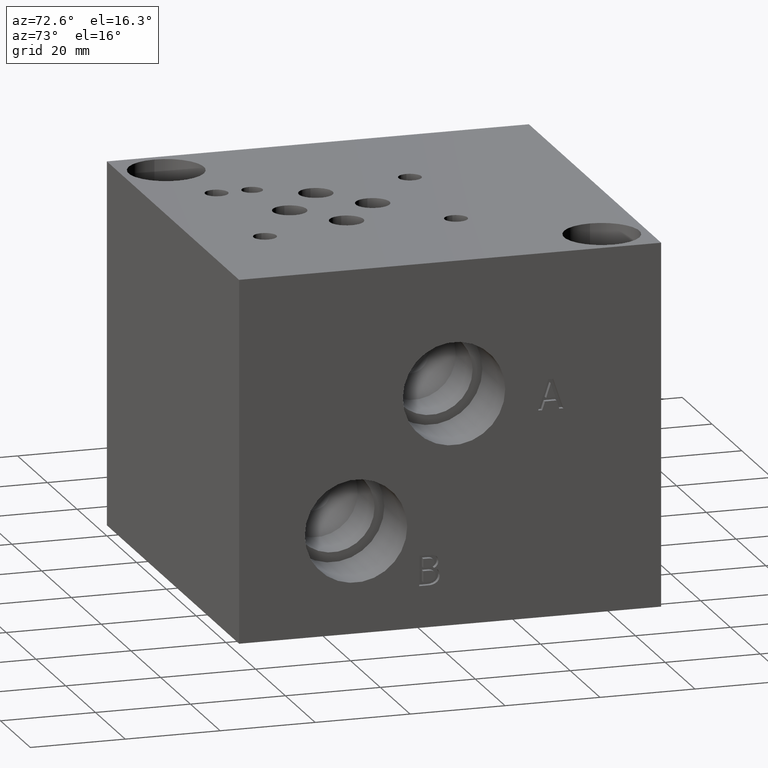
[diagram: clean part render]
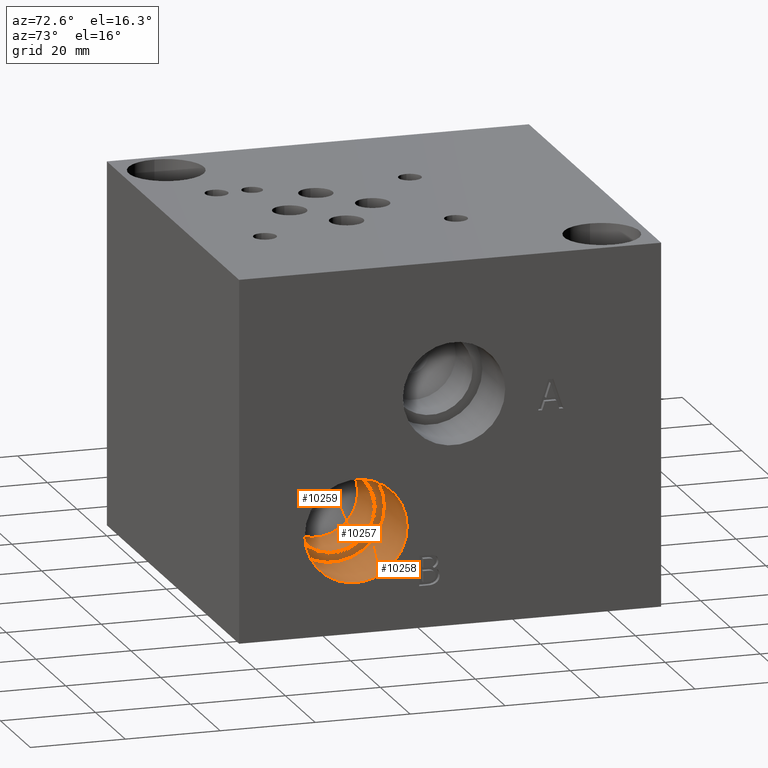
[diagram: same view with one multi-face feature highlighted, each face labeled with its STEP entity id]
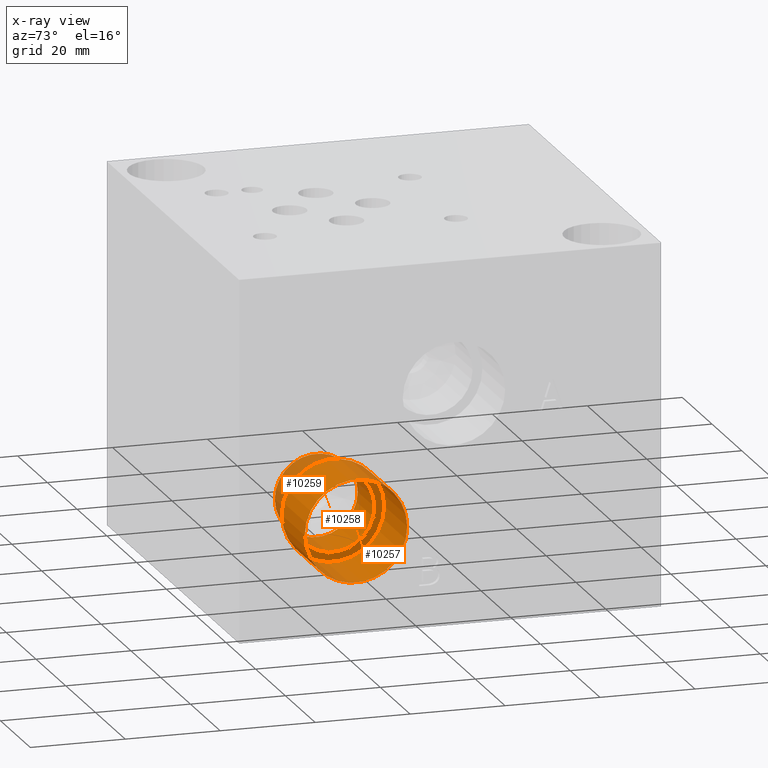
[diagram: x-ray of the same camera — body ghosted, the whole feature saturated]
A machine part, auxiliary view. The highlighted faces form ONE feature: a stepped (counterbored) hole: 2 coaxial cylindrical walls of radii 8.7376 -> 10.795 mm joined by 1 annular planar shoulder face(s). The faces share edges in the B-rep.
The next image is the same camera in x-ray: the body ghosted and the whole hole feature saturated, so the bore chain is visible through the body.
Their STEP definitions:
[1] entity #10258 (Cylinder):
#24=CYLINDRICAL_SURFACE('',#10691,10.795);
#87=CIRCLE('',#10622,10.795);
#88=CIRCLE('',#10623,10.795);
#117=CIRCLE('',#10688,10.795);
#118=CIRCLE('',#10689,10.795);
#1066=FACE_OUTER_BOUND('',#1645,.T.);
#1645=EDGE_LOOP('',(#8899,#8900,#8901,#8902,#8903,#8904));
#2659=LINE('',#17422,#3639);
#3639=VECTOR('',#12500,10.795);
#4791=VERTEX_POINT('',#17242);
#4792=VERTEX_POINT('',#17243);
#4848=VERTEX_POINT('',#17415);
#4849=VERTEX_POINT('',#17416);
#6152=EDGE_CURVE('',#4791,#4792,#87,.T.);
#6153=EDGE_CURVE('',#4792,#4791,#88,.T.);
#6232=EDGE_CURVE('',#4848,#4849,#117,.T.);
#6233=EDGE_CURVE('',#4849,#4848,#118,.T.);
#6235=EDGE_CURVE('',#4792,#4849,#2659,.T.);
#8899=ORIENTED_EDGE('',*,*,#6152,.F.);
#8900=ORIENTED_EDGE('',*,*,#6153,.F.);
#8901=ORIENTED_EDGE('',*,*,#6235,.T.);
#8902=ORIENTED_EDGE('',*,*,#6232,.F.);
#8903=ORIENTED_EDGE('',*,*,#6233,.F.);
#8904=ORIENTED_EDGE('',*,*,#6235,.F.);
#10258=ADVANCED_FACE('',(#1066),#24,.F.);
#10622=AXIS2_PLACEMENT_3D('',#17244,#12310,#12311);
#10623=AXIS2_PLACEMENT_3D('',#17245,#12312,#12313);
#10688=AXIS2_PLACEMENT_3D('',#17417,#12492,#12493);
#10689=AXIS2_PLACEMENT_3D('',#17418,#12494,#12495);
#10691=AXIS2_PLACEMENT_3D('',#17421,#12498,#12499);
#12310=DIRECTION('center_axis',(-1.,0.,0.));
#12311=DIRECTION('ref_axis',(0.,1.,0.));
#12312=DIRECTION('center_axis',(-1.,0.,0.));
#12313=DIRECTION('ref_axis',(0.,1.,0.));
#12492=DIRECTION('center_axis',(1.,0.,0.));
#12493=DIRECTION('ref_axis',(0.,1.,0.));
#12494=DIRECTION('center_axis',(1.,0.,0.));
#12495=DIRECTION('ref_axis',(0.,1.,0.));
#12498=DIRECTION('center_axis',(1.,0.,0.));
#12499=DIRECTION('ref_axis',(0.,1.,0.));
#12500=DIRECTION('',(-1.,0.,0.));
#17242=CARTESIAN_POINT('',(88.9,35.4076,21.4376));
#17243=CARTESIAN_POINT('',(88.9,13.8176,21.4376));
#17244=CARTESIAN_POINT('Origin',(88.9,24.6126,21.4376));
#17245=CARTESIAN_POINT('Origin',(88.9,24.6126,21.4376));
#17415=CARTESIAN_POINT('',(73.533,35.4076,21.4376));
#17416=CARTESIAN_POINT('',(73.533,13.8176,21.4376));
#17417=CARTESIAN_POINT('Origin',(73.533,24.6126,21.4376));
#17418=CARTESIAN_POINT('Origin',(73.533,24.6126,21.4376));
#17421=CARTESIAN_POINT('Origin',(81.2165,24.6126,21.4376));
#17422=CARTESIAN_POINT('',(81.2165,13.8176,21.4376));
[2] entity #10259 (Cylinder):
#25=CYLINDRICAL_SURFACE('',#10692,8.7376);
#115=CIRCLE('',#10685,8.7376);
#116=CIRCLE('',#10686,8.7376);
#119=CIRCLE('',#10690,8.7376);
#1067=FACE_OUTER_BOUND('',#1646,.T.);
#1646=EDGE_LOOP('',(#8905,#8906,#8907,#8908,#8909));
#2660=LINE('',#17424,#3640);
#3640=VECTOR('',#12503,8.7376);
#4846=VERTEX_POINT('',#17409);
#4847=VERTEX_POINT('',#17410);
#4850=VERTEX_POINT('',#17419);
#6229=EDGE_CURVE('',#4846,#4847,#115,.T.);
#6231=EDGE_CURVE('',#4847,#4846,#116,.T.);
#6234=EDGE_CURVE('',#4850,#4850,#119,.T.);
#6236=EDGE_CURVE('',#4850,#4847,#2660,.T.);
#8905=ORIENTED_EDGE('',*,*,#6234,.T.);
#8906=ORIENTED_EDGE('',*,*,#6236,.T.);
#8907=ORIENTED_EDGE('',*,*,#6229,.F.);
#8908=ORIENTED_EDGE('',*,*,#6231,.F.);
#8909=ORIENTED_EDGE('',*,*,#6236,.F.);
#10259=ADVANCED_FACE('',(#1067),#25,.F.);
#10685=AXIS2_PLACEMENT_3D('',#17411,#12485,#12486);
#10686=AXIS2_PLACEMENT_3D('',#17413,#12488,#12489);
#10690=AXIS2_PLACEMENT_3D('',#17420,#12496,#12497);
#10692=AXIS2_PLACEMENT_3D('',#17423,#12501,#12502);
#12485=DIRECTION('center_axis',(1.,0.,0.));
#12486=DIRECTION('ref_axis',(0.,1.,0.));
#12488=DIRECTION('center_axis',(1.,0.,0.));
#12489=DIRECTION('ref_axis',(0.,1.,0.));
#12496=DIRECTION('center_axis',(1.,0.,0.));
#12497=DIRECTION('ref_axis',(0.,1.,0.));
#12501=DIRECTION('center_axis',(1.,0.,0.));
#12502=DIRECTION('ref_axis',(0.,1.,0.));
#12503=DIRECTION('',(-1.,0.,0.));
#17409=CARTESIAN_POINT('',(62.19465,33.3502,21.4376));
#17410=CARTESIAN_POINT('',(62.19465,15.875,21.4376));
#17411=CARTESIAN_POINT('Origin',(62.19465,24.6126,21.4376));
#17413=CARTESIAN_POINT('Origin',(62.19465,24.6126,21.4376));
#17419=CARTESIAN_POINT('',(73.533,15.875,21.4376));
#17420=CARTESIAN_POINT('Origin',(73.533,24.6126,21.4376));
#17423=CARTESIAN_POINT('Origin',(75.547325,24.6126,21.4376));
#17424=CARTESIAN_POINT('',(75.547325,15.875,21.4376));
[3] entity #10257 (Plane):
#117=CIRCLE('',#10688,10.795);
#118=CIRCLE('',#10689,10.795);
#119=CIRCLE('',#10690,8.7376);
#265=FACE_BOUND('',#1644,.T.);
#584=PLANE('',#10687);
#1065=FACE_OUTER_BOUND('',#1643,.T.);
#1643=EDGE_LOOP('',(#8896,#8897));
#1644=EDGE_LOOP('',(#8898));
#4848=VERTEX_POINT('',#17415);
#4849=VERTEX_POINT('',#17416);
#4850=VERTEX_POINT('',#17419);
#6232=EDGE_CURVE('',#4848,#4849,#117,.T.);
#6233=EDGE_CURVE('',#4849,#4848,#118,.T.);
#6234=EDGE_CURVE('',#4850,#4850,#119,.T.);
#8896=ORIENTED_EDGE('',*,*,#6232,.T.);
#8897=ORIENTED_EDGE('',*,*,#6233,.T.);
#8898=ORIENTED_EDGE('',*,*,#6234,.F.);
#10257=ADVANCED_FACE('',(#1065,#265),#584,.T.);
#10687=AXIS2_PLACEMENT_3D('',#17414,#12490,#12491);
#10688=AXIS2_PLACEMENT_3D('',#17417,#12492,#12493);
#10689=AXIS2_PLACEMENT_3D('',#17418,#12494,#12495);
#10690=AXIS2_PLACEMENT_3D('',#17420,#12496,#12497);
#12490=DIRECTION('center_axis',(1.,0.,0.));
#12491=DIRECTION('ref_axis',(0.,1.,0.));
#12492=DIRECTION('center_axis',(1.,0.,0.));
#12493=DIRECTION('ref_axis',(0.,1.,0.));
#12494=DIRECTION('center_axis',(1.,0.,0.));
#12495=DIRECTION('ref_axis',(0.,1.,0.));
#12496=DIRECTION('center_axis',(1.,0.,0.));
#12497=DIRECTION('ref_axis',(0.,1.,0.));
#17414=CARTESIAN_POINT('Origin',(73.533,24.6126,21.4376));
#17415=CARTESIAN_POINT('',(73.533,35.4076,21.4376));
#17416=CARTESIAN_POINT('',(73.533,13.8176,21.4376));
#17417=CARTESIAN_POINT('Origin',(73.533,24.6126,21.4376));
#17418=CARTESIAN_POINT('Origin',(73.533,24.6126,21.4376));
#17419=CARTESIAN_POINT('',(73.533,15.875,21.4376));
#17420=CARTESIAN_POINT('Origin',(73.533,24.6126,21.4376));